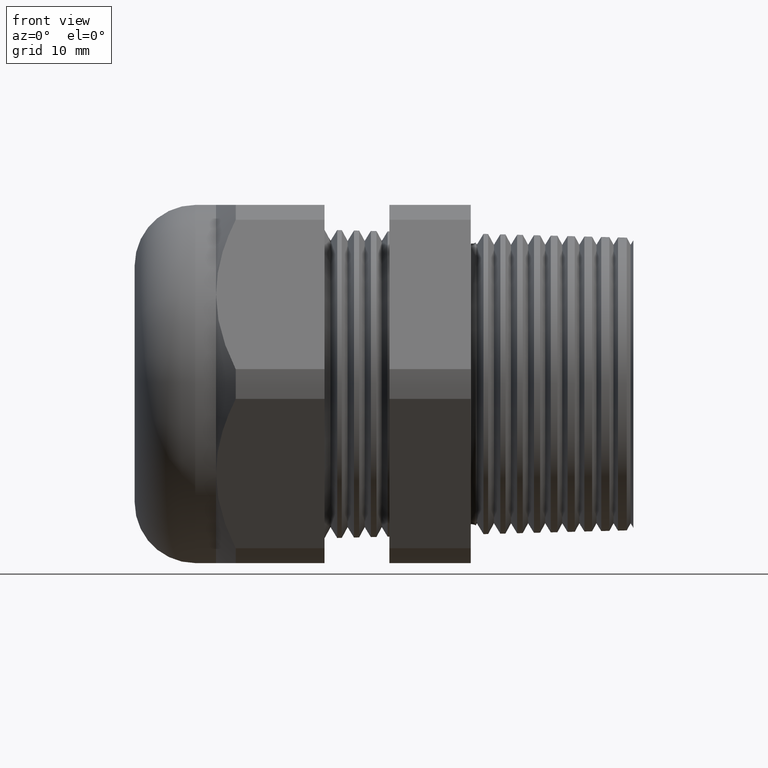
[diagram: clean part render]
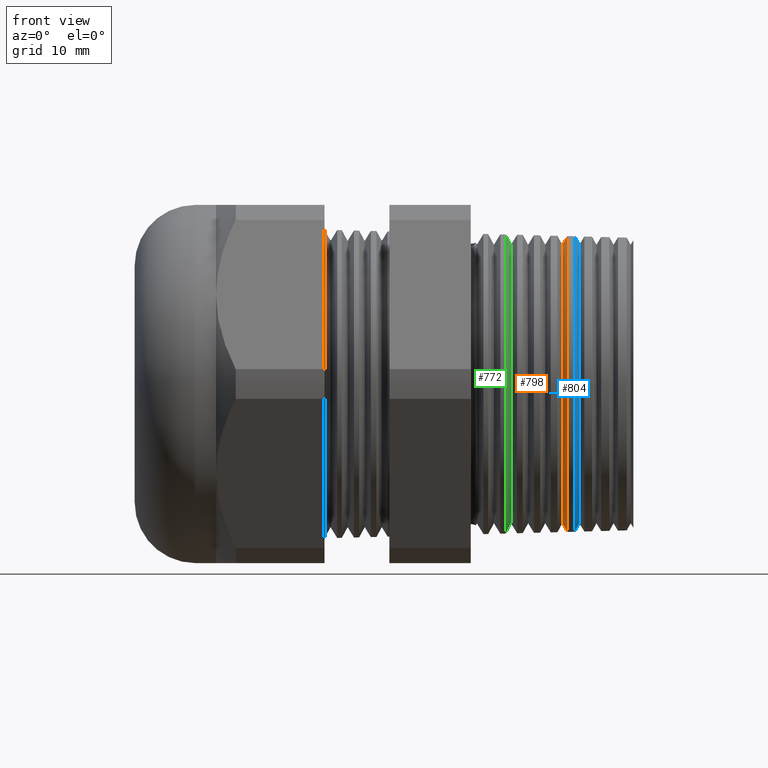
[diagram: same view with three faces highlighted in distinct colors, each labeled with its STEP entity id]
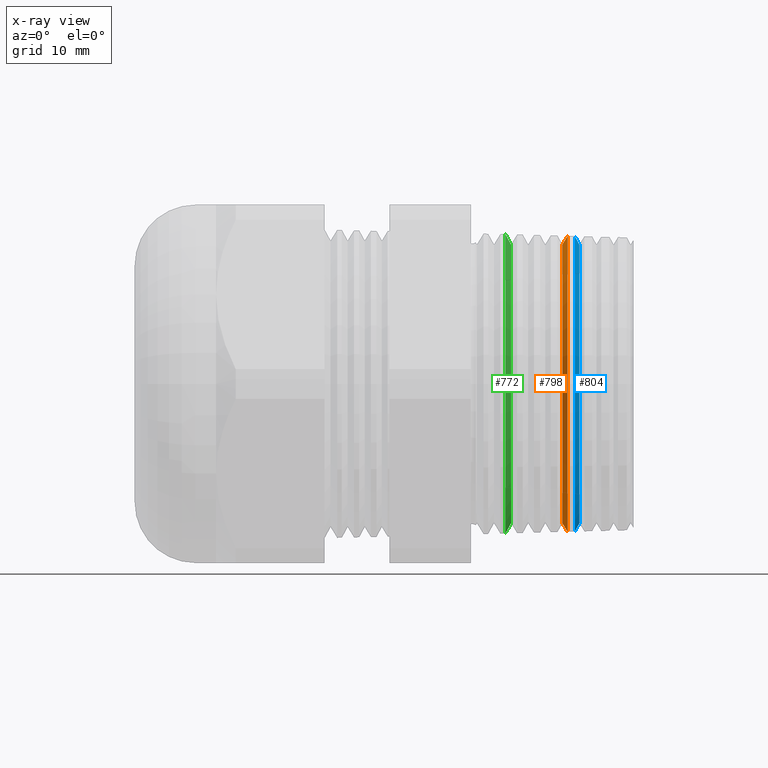
[diagram: x-ray of the same camera — body ghosted, the three highlighted faces saturated]
A machine part, front view with three faces highlighted in distinct colors.
The next image is the same camera in x-ray (body ghosted, the three faces saturated) — at least one of them is partly hidden behind the body in this view.
Their STEP definitions:

[orange] entity #798 — the highlighted conical surface has half-angle 58.5 deg.
#198 = VERTEX_POINT ( 'NONE', #1607 ) ;
#202 = VERTEX_POINT ( 'NONE', #1596 ) ;
#205 = VERTEX_POINT ( 'NONE', #1594 ) ;
#208 = EDGE_CURVE ( 'NONE', #202, #198, #1593, .T. ) ;
#261 = EDGE_CURVE ( 'NONE', #205, #263, #1727, .T. ) ;
#263 = VERTEX_POINT ( 'NONE', #1719 ) ;
#596 = EDGE_CURVE ( 'NONE', #263, #198, #2373, .T. ) ;
#743 = EDGE_CURVE ( 'NONE', #202, #205, #2651, .T. ) ;
#798 = ADVANCED_FACE ( 'NONE', ( #2763 ), #2762, .T. ) ;
#799 = EDGE_LOOP ( 'NONE', ( #800, #801, #802, #803 ) ) ;
#800 = ORIENTED_EDGE ( 'NONE', *, *, #208, .F. ) ;
#801 = ORIENTED_EDGE ( 'NONE', *, *, #743, .T. ) ;
#802 = ORIENTED_EDGE ( 'NONE', *, *, #261, .T. ) ;
#803 = ORIENTED_EDGE ( 'NONE', *, *, #596, .T. ) ;
#1590 = DIRECTION ( 'NONE',  ( 0.5224985647159505800, 1.044183048100710800E-016, 0.8526401643540910700 ) ) ;
#1591 = VECTOR ( 'NONE', #1590, 39.37007874015748100 ) ;
#1592 = CARTESIAN_POINT ( 'NONE',  ( 0.02203901909456562600, 6.190636514768556400E-017, 0.5055038333565824400 ) ) ;
#1593 = LINE ( 'NONE', #1592, #1591 ) ;
#1594 = CARTESIAN_POINT ( 'NONE',  ( 0.02203901909456562600, 6.388760538570679800E-017, -0.5055038333565824400 ) ) ;
#1596 = CARTESIAN_POINT ( 'NONE',  ( 0.02203901909456562600, 0.0000000000000000000, 0.5055038333565824400 ) ) ;
#1607 = CARTESIAN_POINT ( 'NONE',  ( 0.04127626428482016700, 0.0000000000000000000, 0.5368961643760122900 ) ) ;
#1719 = CARTESIAN_POINT ( 'NONE',  ( 0.04127626428482016700, 6.575081691775746600E-017, -0.5368961643760122900 ) ) ;
#1720 = DIRECTION ( 'NONE',  ( 0.5224985647159505800, 0.0000000000000000000, -0.8526401643540910700 ) ) ;
#1721 = VECTOR ( 'NONE', #1720, 39.37007874015748100 ) ;
#1722 = CARTESIAN_POINT ( 'NONE',  ( 0.02203901909456562600, 0.0000000000000000000, -0.5055038333565824400 ) ) ;
#1727 = LINE ( 'NONE', #1722, #1721 ) ;
#2369 = DIRECTION ( 'NONE',  ( 0.0000000000000000000, 0.0000000000000000000, -1.000000000000000000 ) ) ;
#2370 = DIRECTION ( 'NONE',  ( -1.000000000000000000, 0.0000000000000000000, 0.0000000000000000000 ) ) ;
#2371 = CARTESIAN_POINT ( 'NONE',  ( 0.04127626428482016700, 0.0000000000000000000, 0.0000000000000000000 ) ) ;
#2372 = AXIS2_PLACEMENT_3D ( 'NONE', #2371, #2370, #2369 ) ;
#2373 = CIRCLE ( 'NONE', #2372, 0.5368961643760122900 ) ;
#2646 = AXIS2_PLACEMENT_3D ( 'NONE', #2709, #2708, #2707 ) ;
#2651 = CIRCLE ( 'NONE', #2646, 0.5055038333565824400 ) ;
#2707 = DIRECTION ( 'NONE',  ( 0.0000000000000000000, 0.0000000000000000000, -1.000000000000000000 ) ) ;
#2708 = DIRECTION ( 'NONE',  ( 1.000000000000000000, 0.0000000000000000000, 0.0000000000000000000 ) ) ;
#2709 = CARTESIAN_POINT ( 'NONE',  ( 0.02203901909456562600, 0.0000000000000000000, 0.0000000000000000000 ) ) ;
#2757 = DIRECTION ( 'NONE',  ( 0.0000000000000000000, 0.0000000000000000000, -1.000000000000000000 ) ) ;
#2758 = DIRECTION ( 'NONE',  ( 1.000000000000000000, 0.0000000000000000000, 0.0000000000000000000 ) ) ;
#2759 = CARTESIAN_POINT ( 'NONE',  ( 0.02203901909456562600, 0.0000000000000000000, 0.0000000000000000000 ) ) ;
#2760 = AXIS2_PLACEMENT_3D ( 'NONE', #2759, #2758, #2757 ) ;
#2762 = CONICAL_SURFACE ( 'NONE', #2760, 0.5055038333565824400, 1.021017612416680800 ) ;
#2763 = FACE_OUTER_BOUND ( 'NONE', #799, .T. ) ;

[blue] entity #804 — the highlighted conical surface has half-angle 61.5 deg.
#174 = EDGE_CURVE ( 'NONE', #3738, #234, #1537, .T. ) ;
#226 = EDGE_CURVE ( 'NONE', #3735, #228, #1616, .T. ) ;
#228 = VERTEX_POINT ( 'NONE', #1671 ) ;
#234 = VERTEX_POINT ( 'NONE', #1664 ) ;
#593 = EDGE_CURVE ( 'NONE', #228, #234, #2378, .T. ) ;
#804 = ADVANCED_FACE ( 'NONE', ( #2756 ), #2755, .T. ) ;
#805 = EDGE_LOOP ( 'NONE', ( #806, #850, #852, #853 ) ) ;
#806 = ORIENTED_EDGE ( 'NONE', *, *, #174, .F. ) ;
#850 = ORIENTED_EDGE ( 'NONE', *, *, #851, .F. ) ;
#851 = EDGE_CURVE ( 'NONE', #3735, #3738, #2834, .T. ) ;
#852 = ORIENTED_EDGE ( 'NONE', *, *, #226, .T. ) ;
#853 = ORIENTED_EDGE ( 'NONE', *, *, #593, .T. ) ;
#1367 = CARTESIAN_POINT ( 'NONE',  ( 0.06200000000000004800, 0.0000000000000000000, 0.5460946570816891400 ) ) ;
#1534 = DIRECTION ( 'NONE',  ( -0.4771587602596063500, 1.076240564057396000E-016, -0.8788171126619663800 ) ) ;
#1535 = VECTOR ( 'NONE', #1534, 39.37007874015748900 ) ;
#1536 = CARTESIAN_POINT ( 'NONE',  ( 0.06200000000000004800, 6.687730738265620600E-017, -0.5460946570816891400 ) ) ;
#1537 = LINE ( 'NONE', #1536, #1535 ) ;
#1616 = LINE ( 'NONE', #1367, #1673 ) ;
#1664 = CARTESIAN_POINT ( 'NONE',  ( 0.06736530265142906500, 6.570898509484993300E-017, -0.5362129988635289100 ) ) ;
#1671 = CARTESIAN_POINT ( 'NONE',  ( 0.06736530265142906500, 0.0000000000000000000, 0.5362129988635289100 ) ) ;
#1672 = DIRECTION ( 'NONE',  ( -0.4771587602596063500, 0.0000000000000000000, 0.8788171126619663800 ) ) ;
#1673 = VECTOR ( 'NONE', #1672, 39.37007874015748900 ) ;
#2374 = DIRECTION ( 'NONE',  ( 0.0000000000000000000, 0.0000000000000000000, 1.000000000000000000 ) ) ;
#2375 = DIRECTION ( 'NONE',  ( 1.000000000000000000, 0.0000000000000000000, 0.0000000000000000000 ) ) ;
#2376 = CARTESIAN_POINT ( 'NONE',  ( 0.06736530265142906500, 0.0000000000000000000, 0.0000000000000000000 ) ) ;
#2377 = AXIS2_PLACEMENT_3D ( 'NONE', #2376, #2375, #2374 ) ;
#2378 = CIRCLE ( 'NONE', #2377, 0.5362129988635289100 ) ;
#2751 = DIRECTION ( 'NONE',  ( 0.0000000000000000000, 0.0000000000000000000, 1.000000000000000000 ) ) ;
#2752 = DIRECTION ( 'NONE',  ( -1.000000000000000000, 0.0000000000000000000, 0.0000000000000000000 ) ) ;
#2753 = AXIS2_PLACEMENT_3D ( 'NONE', #2761, #2752, #2751 ) ;
#2755 = CONICAL_SURFACE ( 'NONE', #2753, 0.5460946570816891400, 1.073377489976514900 ) ;
#2756 = FACE_OUTER_BOUND ( 'NONE', #805, .T. ) ;
#2761 = CARTESIAN_POINT ( 'NONE',  ( 0.06200000000000004800, 0.0000000000000000000, 0.0000000000000000000 ) ) ;
#2831 = DIRECTION ( 'NONE',  ( 0.0000000000000000000, 0.0000000000000000000, -1.000000000000000000 ) ) ;
#2832 = DIRECTION ( 'NONE',  ( 1.000000000000000000, 0.0000000000000000000, 0.0000000000000000000 ) ) ;
#2833 = AXIS2_PLACEMENT_3D ( 'NONE', #2838, #2832, #2831 ) ;
#2834 = CIRCLE ( 'NONE', #2833, 0.5055038333565824400 ) ;
#2838 = CARTESIAN_POINT ( 'NONE',  ( 0.08403901909456566700, 0.0000000000000000000, 0.0000000000000000000 ) ) ;
#3366 = CARTESIAN_POINT ( 'NONE',  ( 0.08403901909456566700, 6.378675920981398200E-017, -0.5055038333565824400 ) ) ;
#3371 = CARTESIAN_POINT ( 'NONE',  ( 0.08403901909456566700, 0.0000000000000000000, 0.5055038333565824400 ) ) ;
#3735 = VERTEX_POINT ( 'NONE', #3371 ) ;
#3738 = VERTEX_POINT ( 'NONE', #3366 ) ;

[green] entity #772 — the highlighted conical surface has half-angle 61.5 deg.
#651 = EDGE_CURVE ( 'NONE', #3805, #3820, #2498, .T. ) ;
#756 = ORIENTED_EDGE ( 'NONE', *, *, #651, .T. ) ;
#772 = ADVANCED_FACE ( 'NONE', ( #2737 ), #2736, .T. ) ;
#773 = EDGE_LOOP ( 'NONE', ( #774, #775, #777, #756 ) ) ;
#774 = ORIENTED_EDGE ( 'NONE', *, *, #3823, .F. ) ;
#775 = ORIENTED_EDGE ( 'NONE', *, *, #776, .F. ) ;
#776 = EDGE_CURVE ( 'NONE', #3849, #3850, #2730, .T. ) ;
#777 = ORIENTED_EDGE ( 'NONE', *, *, #3817, .T. ) ;
#2489 = DIRECTION ( 'NONE',  ( 0.0000000000000000000, 0.0000000000000000000, 1.000000000000000000 ) ) ;
#2490 = DIRECTION ( 'NONE',  ( 1.000000000000000000, 0.0000000000000000000, 0.0000000000000000000 ) ) ;
#2491 = CARTESIAN_POINT ( 'NONE',  ( -0.1842115657828569700, 0.0000000000000000000, 0.0000000000000000000 ) ) ;
#2492 = AXIS2_PLACEMENT_3D ( 'NONE', #2491, #2490, #2489 ) ;
#2498 = CIRCLE ( 'NONE', #2492, 0.5428007710089689500 ) ;
#2727 = DIRECTION ( 'NONE',  ( 0.0000000000000000000, 0.0000000000000000000, -1.000000000000000000 ) ) ;
#2728 = DIRECTION ( 'NONE',  ( 1.000000000000000000, 0.0000000000000000000, 0.0000000000000000000 ) ) ;
#2729 = AXIS2_PLACEMENT_3D ( 'NONE', #2735, #2728, #2727 ) ;
#2730 = CIRCLE ( 'NONE', #2729, 0.5055038333565824400 ) ;
#2731 = DIRECTION ( 'NONE',  ( 0.0000000000000000000, 0.0000000000000000000, 1.000000000000000000 ) ) ;
#2732 = DIRECTION ( 'NONE',  ( -1.000000000000000000, 0.0000000000000000000, 0.0000000000000000000 ) ) ;
#2733 = CARTESIAN_POINT ( 'NONE',  ( -0.1859999999999999700, 0.0000000000000000000, 0.0000000000000000000 ) ) ;
#2734 = AXIS2_PLACEMENT_3D ( 'NONE', #2733, #2732, #2731 ) ;
#2735 = CARTESIAN_POINT ( 'NONE',  ( -0.1639609809054343400, 0.0000000000000000000, 0.0000000000000000000 ) ) ;
#2736 = CONICAL_SURFACE ( 'NONE', #2734, 0.5460946570816891400, 1.073377489976514900 ) ;
#2737 = FACE_OUTER_BOUND ( 'NONE', #773, .T. ) ;
#3505 = CARTESIAN_POINT ( 'NONE',  ( -0.1842115657828569700, 0.0000000000000000000, 0.5428007710089689500 ) ) ;
#3516 = DIRECTION ( 'NONE',  ( -0.4771587602596063500, 1.076240564057396000E-016, -0.8788171126619663800 ) ) ;
#3517 = VECTOR ( 'NONE', #3516, 39.37007874015748900 ) ;
#3518 = CARTESIAN_POINT ( 'NONE',  ( -0.1859999999999999700, 6.687730738265620600E-017, -0.5460946570816891400 ) ) ;
#3519 = LINE ( 'NONE', #3518, #3517 ) ;
#3525 = CARTESIAN_POINT ( 'NONE',  ( -0.1842115657828569700, 6.650373905488585400E-017, -0.5428007710089689500 ) ) ;
#3532 = DIRECTION ( 'NONE',  ( -0.4771587602596063500, 0.0000000000000000000, 0.8788171126619663800 ) ) ;
#3533 = VECTOR ( 'NONE', #3532, 39.37007874015748900 ) ;
#3534 = CARTESIAN_POINT ( 'NONE',  ( -0.1859999999999999700, 0.0000000000000000000, 0.5460946570816891400 ) ) ;
#3535 = LINE ( 'NONE', #3534, #3533 ) ;
#3593 = CARTESIAN_POINT ( 'NONE',  ( -0.1639609809054343400, 6.419014391338524700E-017, -0.5055038333565824400 ) ) ;
#3594 = CARTESIAN_POINT ( 'NONE',  ( -0.1639609809054343400, 0.0000000000000000000, 0.5055038333565824400 ) ) ;
#3805 = VERTEX_POINT ( 'NONE', #3505 ) ;
#3817 = EDGE_CURVE ( 'NONE', #3849, #3805, #3535, .T. ) ;
#3820 = VERTEX_POINT ( 'NONE', #3525 ) ;
#3823 = EDGE_CURVE ( 'NONE', #3850, #3820, #3519, .T. ) ;
#3849 = VERTEX_POINT ( 'NONE', #3594 ) ;
#3850 = VERTEX_POINT ( 'NONE', #3593 ) ;